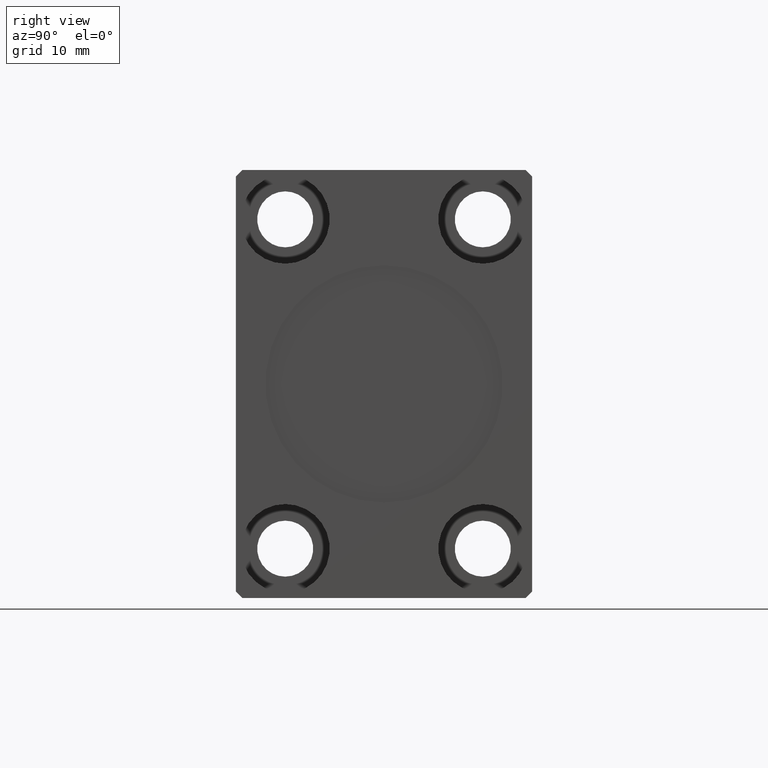
[diagram: clean part render]
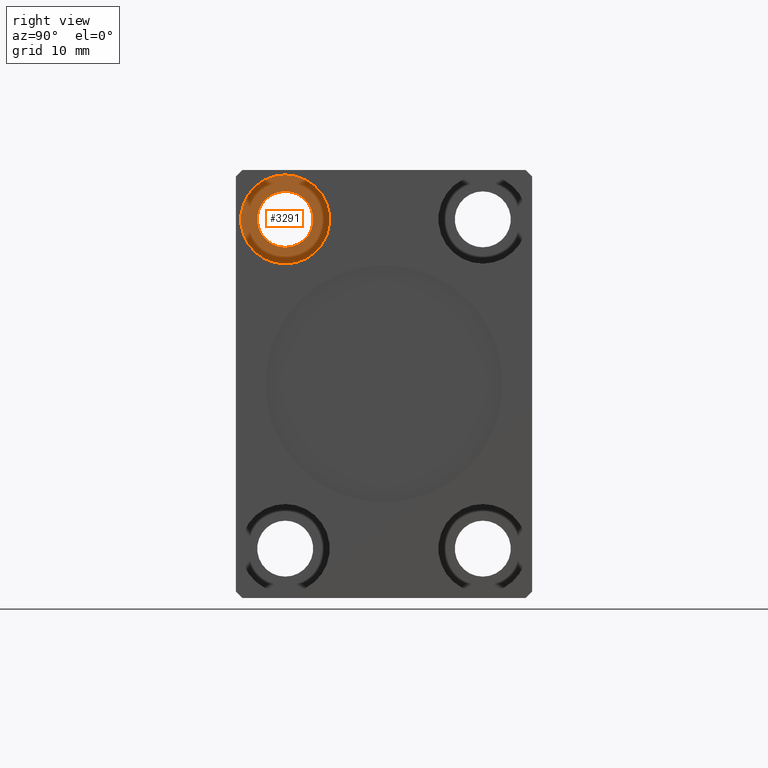
[diagram: same view with one face highlighted and labeled with its STEP entity id]
A machine part, right view. The second image highlights one B-rep face of the part: STEP entity #3291.
In plain terms, the highlighted planar face has unit normal (1, 0, -0).
Its self-contained STEP definition (entity closure, byte-faithful):
#76 = DIRECTION ( 'NONE',  ( 1.000000000000000000, 0.000000000000000000, 0.000000000000000000 ) ) ;
#536 = CARTESIAN_POINT ( 'NONE',  ( 67.66999999999998749, -15.00000000000000000, 25.00000000000000000 ) ) ;
#2738 = AXIS2_PLACEMENT_3D ( 'NONE', #36051, #76, #10416 ) ;
#3243 = FACE_BOUND ( 'NONE', #11392, .T. ) ;
#3291 = ADVANCED_FACE ( 'NONE', ( #3243, #32133 ), #16387, .T. ) ;
#4607 = DIRECTION ( 'NONE',  ( -1.000000000000000000, -0.000000000000000000, -0.000000000000000000 ) ) ;
#4634 = CARTESIAN_POINT ( 'NONE',  ( 67.66999999999998749, -15.00000000000000000, 31.75000000000000711 ) ) ;
#6062 = DIRECTION ( 'NONE',  ( 0.000000000000000000, 0.000000000000000000, 1.000000000000000000 ) ) ;
#7434 = AXIS2_PLACEMENT_3D ( 'NONE', #32628, #29825, #32832 ) ;
#10416 = DIRECTION ( 'NONE',  ( 0.000000000000000000, 0.000000000000000000, -1.000000000000000000 ) ) ;
#10791 = EDGE_LOOP ( 'NONE', ( #13812, #42521 ) ) ;
#11392 = EDGE_LOOP ( 'NONE', ( #37468, #25743 ) ) ;
#11907 = EDGE_CURVE ( 'NONE', #25449, #34331, #26121, .T. ) ;
#12494 = AXIS2_PLACEMENT_3D ( 'NONE', #536, #23161, #36291 ) ;
#13812 = ORIENTED_EDGE ( 'NONE', *, *, #39249, .F. ) ;
#15265 = CIRCLE ( 'NONE', #12494, 4.249999999999996447 ) ;
#16385 = EDGE_CURVE ( 'NONE', #34331, #25449, #15265, .T. ) ;
#16387 = PLANE ( 'NONE',  #34293 ) ;
#19417 = DIRECTION ( 'NONE',  ( 1.000000000000000000, 0.000000000000000000, -0.000000000000000000 ) ) ;
#21828 = EDGE_CURVE ( 'NONE', #40745, #25713, #22894, .T. ) ;
#22894 = CIRCLE ( 'NONE', #23573, 6.750000000000006217 ) ;
#23161 = DIRECTION ( 'NONE',  ( 1.000000000000000000, 0.000000000000000000, 0.000000000000000000 ) ) ;
#23573 = AXIS2_PLACEMENT_3D ( 'NONE', #34957, #4607, #30889 ) ;
#25449 = VERTEX_POINT ( 'NONE', #36627 ) ;
#25713 = VERTEX_POINT ( 'NONE', #39583 ) ;
#25743 = ORIENTED_EDGE ( 'NONE', *, *, #11907, .F. ) ;
#25953 = CARTESIAN_POINT ( 'NONE',  ( 67.66999999999998749, -15.00000000000000000, 29.25000000000000000 ) ) ;
#26121 = CIRCLE ( 'NONE', #2738, 4.249999999999996447 ) ;
#29114 = CARTESIAN_POINT ( 'NONE',  ( 67.66999999999998749, -15.00000000000000000, 25.00000000000000000 ) ) ;
#29825 = DIRECTION ( 'NONE',  ( -1.000000000000000000, -0.000000000000000000, -0.000000000000000000 ) ) ;
#30889 = DIRECTION ( 'NONE',  ( 0.000000000000000000, 0.000000000000000000, 1.000000000000000000 ) ) ;
#32133 = FACE_OUTER_BOUND ( 'NONE', #10791, .T. ) ;
#32628 = CARTESIAN_POINT ( 'NONE',  ( 67.66999999999998749, -15.00000000000000000, 25.00000000000000000 ) ) ;
#32832 = DIRECTION ( 'NONE',  ( 0.000000000000000000, 0.000000000000000000, 1.000000000000000000 ) ) ;
#34287 = CIRCLE ( 'NONE', #7434, 6.750000000000006217 ) ;
#34293 = AXIS2_PLACEMENT_3D ( 'NONE', #29114, #19417, #6062 ) ;
#34331 = VERTEX_POINT ( 'NONE', #25953 ) ;
#34957 = CARTESIAN_POINT ( 'NONE',  ( 67.66999999999998749, -15.00000000000000000, 25.00000000000000000 ) ) ;
#36051 = CARTESIAN_POINT ( 'NONE',  ( 67.66999999999998749, -15.00000000000000000, 25.00000000000000000 ) ) ;
#36291 = DIRECTION ( 'NONE',  ( 0.000000000000000000, 0.000000000000000000, -1.000000000000000000 ) ) ;
#36627 = CARTESIAN_POINT ( 'NONE',  ( 67.66999999999998749, -15.00000000000000000, 20.75000000000000355 ) ) ;
#37468 = ORIENTED_EDGE ( 'NONE', *, *, #16385, .F. ) ;
#39249 = EDGE_CURVE ( 'NONE', #25713, #40745, #34287, .T. ) ;
#39583 = CARTESIAN_POINT ( 'NONE',  ( 67.66999999999998749, -15.00000000000000000, 18.24999999999999645 ) ) ;
#40745 = VERTEX_POINT ( 'NONE', #4634 ) ;
#42521 = ORIENTED_EDGE ( 'NONE', *, *, #21828, .F. ) ;